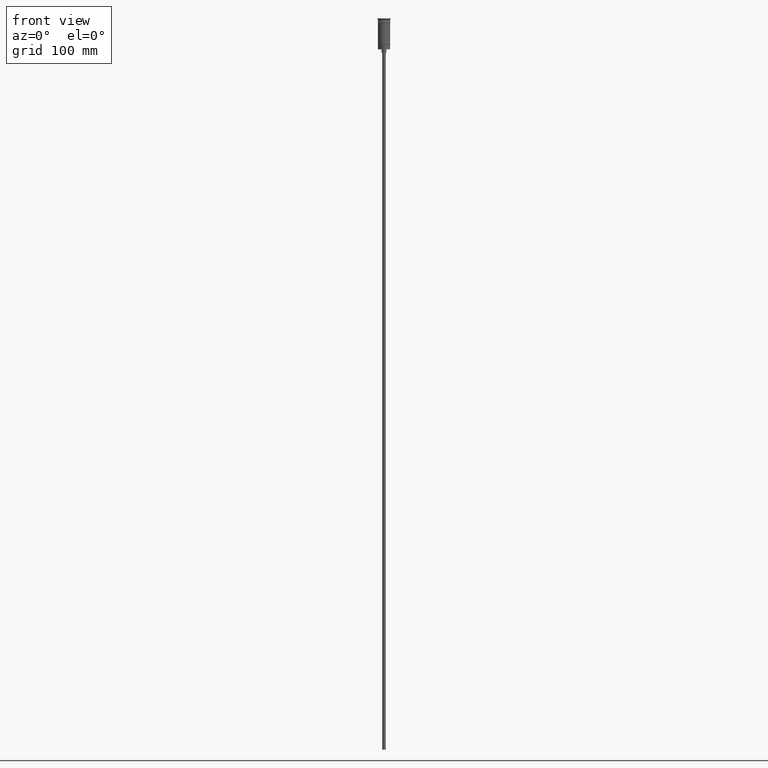
[diagram: clean part render]
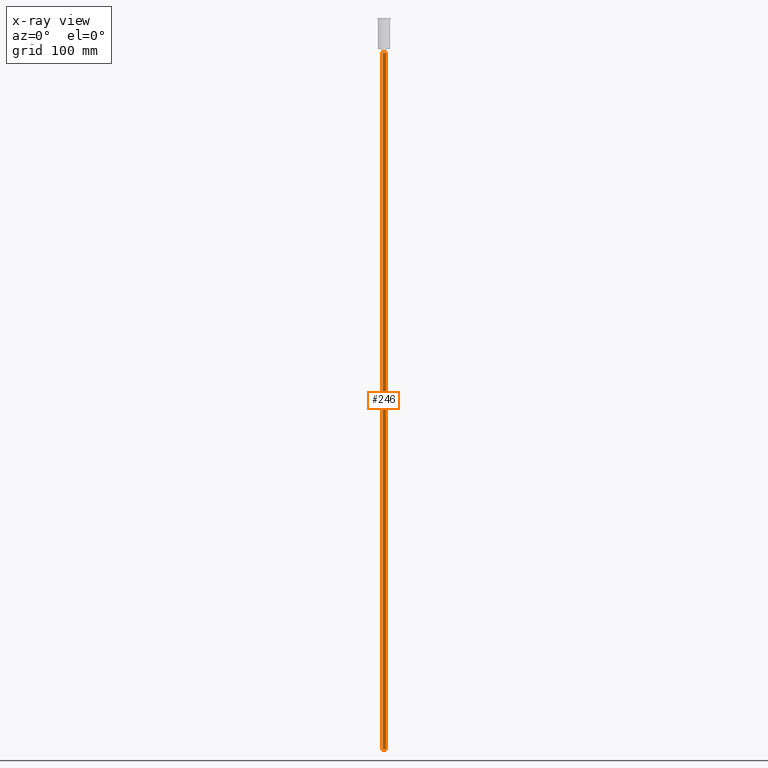
[diagram: x-ray — body ghosted, one internal face saturated and labeled with its STEP entity id]
A machine part, front view, then the same camera in x-ray: the body is ghosted and one INTERNAL B-rep face — a face not visible from any outside direction — is saturated and labeled: STEP entity #246.
In plain terms, the highlighted cylindrical surface (edge-blend (fillet) strip) has radius 1.5 mm, axis along (-0, -0, 1).
Its self-contained STEP definition (entity closure, byte-faithful):
#2 = CIRCLE ( 'NONE', #1118, 1.500000000000000222 ) ;
#11 = CARTESIAN_POINT ( 'NONE',  ( -1.500000000000000222, 1.836970198721030181E-16, -626.5000000000000000 ) ) ;
#13 = DIRECTION ( 'NONE',  ( -0.000000000000000000, -0.000000000000000000, 1.000000000000000000 ) ) ;
#44 = CARTESIAN_POINT ( 'NONE',  ( -1.500000000000000222, 1.836970198721030181E-16, -626.5000000000000000 ) ) ;
#85 = EDGE_CURVE ( 'NONE', #170, #1201, #789, .T. ) ;
#102 = CARTESIAN_POINT ( 'NONE',  ( 1.500000000000000222, 0.000000000000000000, -626.5000000000000000 ) ) ;
#128 = CARTESIAN_POINT ( 'NONE',  ( 0.000000000000000000, 0.000000000000000000, -29.50000000000000000 ) ) ;
#170 = VERTEX_POINT ( 'NONE', #44 ) ;
#224 = CYLINDRICAL_SURFACE ( 'NONE', #1329, 1.500000000000000222 ) ;
#231 = EDGE_CURVE ( 'NONE', #1201, #250, #2, .T. ) ;
#246 = ADVANCED_FACE ( 'NONE', ( #1336 ), #224, .T. ) ;
#250 = VERTEX_POINT ( 'NONE', #740 ) ;
#256 = VECTOR ( 'NONE', #1523, 1000.000000000000000 ) ;
#268 = EDGE_LOOP ( 'NONE', ( #432, #1195, #1161, #913 ) ) ;
#432 = ORIENTED_EDGE ( 'NONE', *, *, #542, .F. ) ;
#463 = DIRECTION ( 'NONE',  ( -0.000000000000000000, -0.000000000000000000, 1.000000000000000000 ) ) ;
#503 = CARTESIAN_POINT ( 'NONE',  ( 0.000000000000000000, 0.000000000000000000, -626.5000000000000000 ) ) ;
#542 = EDGE_CURVE ( 'NONE', #170, #543, #936, .T. ) ;
#543 = VERTEX_POINT ( 'NONE', #102 ) ;
#588 = CARTESIAN_POINT ( 'NONE',  ( -1.500000000000000222, 1.836970198721030181E-16, -29.50000000000000000 ) ) ;
#728 = CARTESIAN_POINT ( 'NONE',  ( 0.000000000000000000, 0.000000000000000000, -626.5000000000000000 ) ) ;
#740 = CARTESIAN_POINT ( 'NONE',  ( 1.500000000000000222, 0.000000000000000000, -29.50000000000000000 ) ) ;
#789 = LINE ( 'NONE', #11, #1145 ) ;
#913 = ORIENTED_EDGE ( 'NONE', *, *, #1455, .F. ) ;
#914 = DIRECTION ( 'NONE',  ( -1.000000000000000000, 0.000000000000000000, 0.000000000000000000 ) ) ;
#936 = CIRCLE ( 'NONE', #1323, 1.500000000000000222 ) ;
#996 = DIRECTION ( 'NONE',  ( 0.000000000000000000, 0.000000000000000000, -1.000000000000000000 ) ) ;
#1104 = DIRECTION ( 'NONE',  ( 1.000000000000000000, 0.000000000000000000, 0.000000000000000000 ) ) ;
#1118 = AXIS2_PLACEMENT_3D ( 'NONE', #128, #1411, #914 ) ;
#1145 = VECTOR ( 'NONE', #463, 1000.000000000000000 ) ;
#1161 = ORIENTED_EDGE ( 'NONE', *, *, #231, .T. ) ;
#1195 = ORIENTED_EDGE ( 'NONE', *, *, #85, .T. ) ;
#1201 = VERTEX_POINT ( 'NONE', #588 ) ;
#1323 = AXIS2_PLACEMENT_3D ( 'NONE', #503, #996, #1579 ) ;
#1329 = AXIS2_PLACEMENT_3D ( 'NONE', #728, #13, #1104 ) ;
#1336 = FACE_OUTER_BOUND ( 'NONE', #268, .T. ) ;
#1388 = LINE ( 'NONE', #1509, #256 ) ;
#1411 = DIRECTION ( 'NONE',  ( 0.000000000000000000, 0.000000000000000000, -1.000000000000000000 ) ) ;
#1455 = EDGE_CURVE ( 'NONE', #543, #250, #1388, .T. ) ;
#1509 = CARTESIAN_POINT ( 'NONE',  ( 1.500000000000000222, 0.000000000000000000, -626.5000000000000000 ) ) ;
#1523 = DIRECTION ( 'NONE',  ( -0.000000000000000000, -0.000000000000000000, 1.000000000000000000 ) ) ;
#1579 = DIRECTION ( 'NONE',  ( -1.000000000000000000, 0.000000000000000000, 0.000000000000000000 ) ) ;